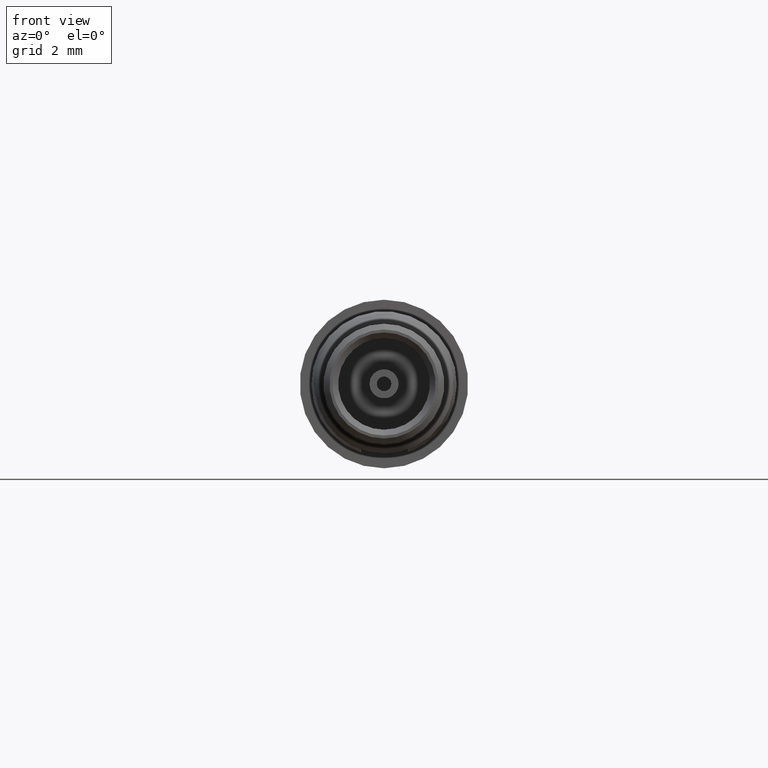
[diagram: clean part render]
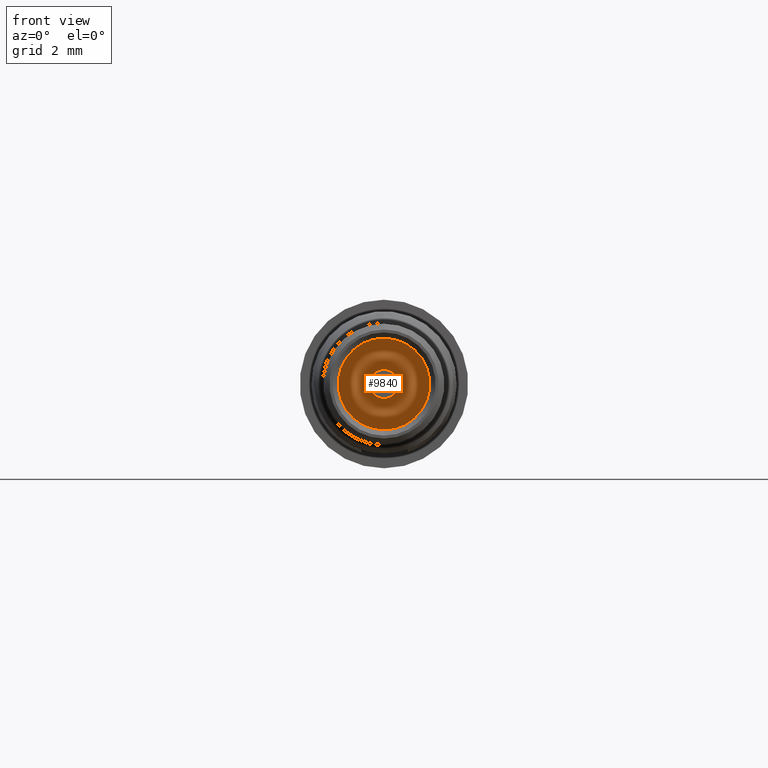
[diagram: same view with one face highlighted and labeled with its STEP entity id]
A machine part, front view. The second image highlights one B-rep face of the part: STEP entity #9840.
In plain terms, the highlighted planar face has unit normal (-0, -1, 0).
Its self-contained STEP definition (entity closure, byte-faithful):
#2630=CARTESIAN_POINT('',(66.6468230000002,75.8045149999963,
-14.6999999999995));
#2640=VERTEX_POINT('',#2630);
#2800=CARTESIAN_POINT('',(66.6468230000002,78.9545149999963,
-14.6999999999995));
#2810=VERTEX_POINT('',#2800);
#2840=CARTESIAN_POINT('',(66.6468230000002,77.3795149999963,
-14.6999999999995));
#2850=DIRECTION('',(0.,0.,1.));
#2860=DIRECTION('',(0.,1.,0.));
#2870=AXIS2_PLACEMENT_3D('',#2840,#2850,#2860);
#2880=CIRCLE('',#2870,1.575);
#2890=EDGE_CURVE('',#2640,#2810,#2880,.T.);
#9590=CARTESIAN_POINT('',(66.6468230000002,76.0420149999963,
-14.6999999999995));
#9600=DIRECTION('',(0.,0.,-1.));
#9610=DIRECTION('',(1.,0.,0.));
#9620=AXIS2_PLACEMENT_3D('',#9590,#9600,#9610);
#9630=PLANE('',#9620);
#9640=EDGE_CURVE('',#2810,#2640,#2880,.T.);
#9650=ORIENTED_EDGE('',*,*,#9640,.F.);
#9660=ORIENTED_EDGE('',*,*,#2890,.F.);
#9670=EDGE_LOOP('',(#9660,#9650));
#9680=FACE_OUTER_BOUND('',#9670,.T.);
#9690=CARTESIAN_POINT('',(66.6468230000002,77.3795149999963,
-14.6999999999995));
#9700=DIRECTION('',(0.,0.,-1.));
#9710=DIRECTION('',(1.,0.,0.));
#9720=AXIS2_PLACEMENT_3D('',#9690,#9700,#9710);
#9730=CIRCLE('',#9720,0.5);
#9740=CARTESIAN_POINT('',(67.1468230000002,77.3795149999963,
-14.6999999999995));
#9750=VERTEX_POINT('',#9740);
#9760=CARTESIAN_POINT('',(66.1468230000002,77.3795149999963,
-14.6999999999995));
#9770=VERTEX_POINT('',#9760);
#9780=EDGE_CURVE('',#9750,#9770,#9730,.T.);
#9790=ORIENTED_EDGE('',*,*,#9780,.F.);
#9800=EDGE_CURVE('',#9770,#9750,#9730,.T.);
#9810=ORIENTED_EDGE('',*,*,#9800,.F.);
#9820=EDGE_LOOP('',(#9810,#9790));
#9830=FACE_BOUND('',#9820,.T.);
#9840=ADVANCED_FACE('',(#9680,#9830),#9630,.T.);